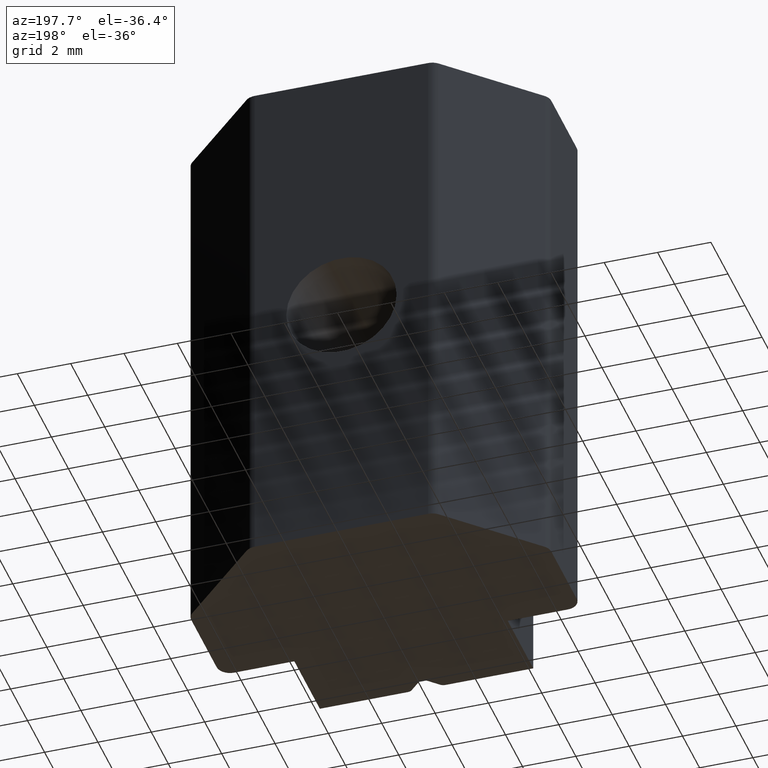
[diagram: clean part render]
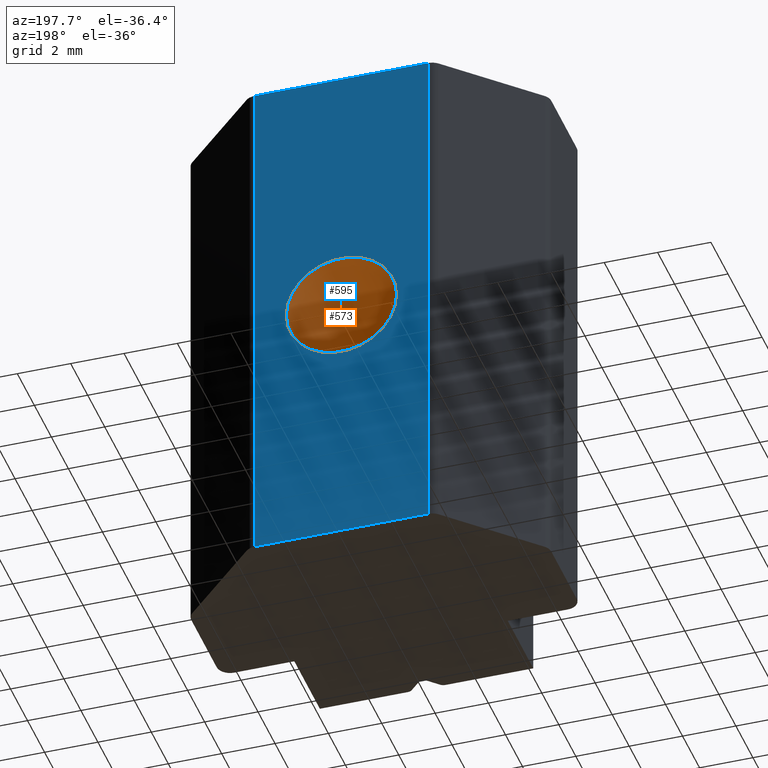
[diagram: same view with the hole feature highlighted: cylindrical wall and planar end face, labeled with their STEP entity ids]
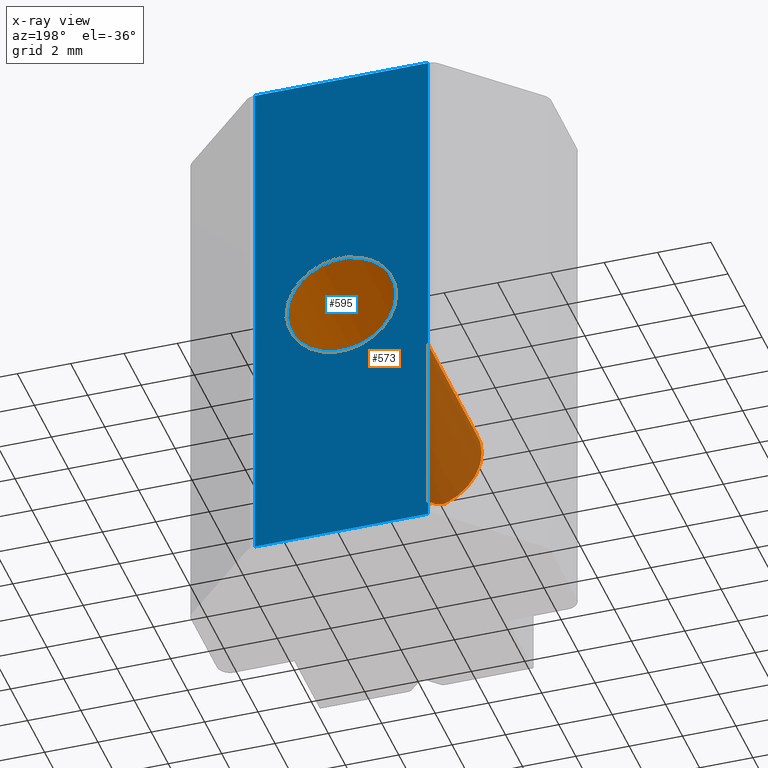
[diagram: x-ray of the same camera — body ghosted, the hole faces saturated]
A machine part, auxiliary view. The highlighted faces form one hole feature of diameter 4.134 mm: the cylindrical wall (entity #573, orange) and its adjacent planar end face (entity #595, blue) — they share a circular edge in the B-rep.
The next image is the same camera in x-ray (body ghosted, the hole faces saturated) — the bore reads through the body.
Wall:
#33=FACE_OUTER_BOUND('',#63,.T.);
#63=EDGE_LOOP('',(#384,#385,#386,#387,#388,#389,#390,#391,#392,#393,#394,
#395,#396,#397,#398,#399,#400));
#94=ELLIPSE('',#627,2.92317943342519,2.067);
#95=ELLIPSE('',#628,2.9231794334252,2.067);
#96=ELLIPSE('',#630,2.9231794334252,2.067);
#97=ELLIPSE('',#631,2.92317943342519,2.067);
#98=B_SPLINE_CURVE_WITH_KNOTS('',3,(#862,#863,#864,#865,#866,#867),
 .UNSPECIFIED.,.F.,.F.,(4,2,4),(0.0189593546450484,0.028750086168631,0.0385408176922137),
 .UNSPECIFIED.);
#99=B_SPLINE_CURVE_WITH_KNOTS('',3,(#871,#872,#873,#874,#875,#876,#877,
#878,#879,#880),.UNSPECIFIED.,.F.,.F.,(4,2,2,2,4),(0.0188542320850235,0.0282812791627061,
0.0377083262403887,0.0471353733180714,0.056562420395754),.UNSPECIFIED.);
#100=B_SPLINE_CURVE_WITH_KNOTS('',3,(#884,#885,#886,#887,#888,#889),
 .UNSPECIFIED.,.F.,.F.,(4,2,4),(0.0393761439582481,0.0492658426014724,0.058958786884301),
 .UNSPECIFIED.);
#101=B_SPLINE_CURVE_WITH_KNOTS('',3,(#893,#894,#895,#896,#897,#898),
 .UNSPECIFIED.,.F.,.F.,(4,2,4),(0.0968750463784597,0.106567990661288,0.116457689304513),
 .UNSPECIFIED.);
#102=B_SPLINE_CURVE_WITH_KNOTS('',3,(#902,#903,#904,#905,#906,#907,#908,
#909,#910,#911),.UNSPECIFIED.,.F.,.F.,(4,2,2,2,4),(0.0942708845658011,0.103697931643484,
0.113124978721166,0.122552025798849,0.131979072876532),.UNSPECIFIED.);
#103=B_SPLINE_CURVE_WITH_KNOTS('',3,(#915,#916,#917,#918,#919,#920),
 .UNSPECIFIED.,.F.,.F.,(4,2,4),(0.11729548706883,0.127086218592413,0.136876950115996),
 .UNSPECIFIED.);
#104=LINE('',#858,#159);
#159=VECTOR('',#688,2.067);
#214=CIRCLE('',#624,2.067);
#215=CIRCLE('',#625,2.067);
#216=CIRCLE('',#626,2.067);
#217=CIRCLE('',#629,2.067);
#218=CIRCLE('',#632,2.067);
#237=VERTEX_POINT('',#853);
#238=VERTEX_POINT('',#854);
#239=VERTEX_POINT('',#857);
#240=VERTEX_POINT('',#859);
#241=VERTEX_POINT('',#861);
#242=VERTEX_POINT('',#868);
#243=VERTEX_POINT('',#870);
#244=VERTEX_POINT('',#881);
#245=VERTEX_POINT('',#883);
#246=VERTEX_POINT('',#890);
#247=VERTEX_POINT('',#892);
#248=VERTEX_POINT('',#899);
#249=VERTEX_POINT('',#901);
#250=VERTEX_POINT('',#912);
#251=VERTEX_POINT('',#914);
#296=EDGE_CURVE('',#237,#238,#214,.T.);
#297=EDGE_CURVE('',#238,#237,#215,.T.);
#298=EDGE_CURVE('',#238,#239,#104,.T.);
#299=EDGE_CURVE('',#240,#239,#216,.T.);
#300=EDGE_CURVE('',#241,#240,#98,.T.);
#301=EDGE_CURVE('',#242,#241,#94,.T.);
#302=EDGE_CURVE('',#243,#242,#99,.T.);
#303=EDGE_CURVE('',#244,#243,#95,.T.);
#304=EDGE_CURVE('',#245,#244,#100,.T.);
#305=EDGE_CURVE('',#246,#245,#217,.T.);
#306=EDGE_CURVE('',#247,#246,#101,.T.);
#307=EDGE_CURVE('',#248,#247,#96,.T.);
#308=EDGE_CURVE('',#249,#248,#102,.T.);
#309=EDGE_CURVE('',#250,#249,#97,.T.);
#310=EDGE_CURVE('',#251,#250,#103,.T.);
#311=EDGE_CURVE('',#239,#251,#218,.T.);
#384=ORIENTED_EDGE('',*,*,#296,.F.);
#385=ORIENTED_EDGE('',*,*,#297,.F.);
#386=ORIENTED_EDGE('',*,*,#298,.T.);
#387=ORIENTED_EDGE('',*,*,#299,.F.);
#388=ORIENTED_EDGE('',*,*,#300,.F.);
#389=ORIENTED_EDGE('',*,*,#301,.F.);
#390=ORIENTED_EDGE('',*,*,#302,.F.);
#391=ORIENTED_EDGE('',*,*,#303,.F.);
#392=ORIENTED_EDGE('',*,*,#304,.F.);
#393=ORIENTED_EDGE('',*,*,#305,.F.);
#394=ORIENTED_EDGE('',*,*,#306,.F.);
#395=ORIENTED_EDGE('',*,*,#307,.F.);
#396=ORIENTED_EDGE('',*,*,#308,.F.);
#397=ORIENTED_EDGE('',*,*,#309,.F.);
#398=ORIENTED_EDGE('',*,*,#310,.F.);
#399=ORIENTED_EDGE('',*,*,#311,.F.);
#400=ORIENTED_EDGE('',*,*,#298,.F.);
#560=CYLINDRICAL_SURFACE('',#623,2.067);
#573=ADVANCED_FACE('',(#33),#560,.F.);
#623=AXIS2_PLACEMENT_3D('',#852,#682,#683);
#624=AXIS2_PLACEMENT_3D('',#855,#684,#685);
#625=AXIS2_PLACEMENT_3D('',#856,#686,#687);
#626=AXIS2_PLACEMENT_3D('',#860,#689,#690);
#627=AXIS2_PLACEMENT_3D('',#869,#691,#692);
#628=AXIS2_PLACEMENT_3D('',#882,#693,#694);
#629=AXIS2_PLACEMENT_3D('',#891,#695,#696);
#630=AXIS2_PLACEMENT_3D('',#900,#697,#698);
#631=AXIS2_PLACEMENT_3D('',#913,#699,#700);
#632=AXIS2_PLACEMENT_3D('',#921,#701,#702);
#682=DIRECTION('center_axis',(0.,1.,0.));
#683=DIRECTION('ref_axis',(1.,0.,0.));
#684=DIRECTION('center_axis',(0.,-1.,0.));
#685=DIRECTION('ref_axis',(1.,0.,0.));
#686=DIRECTION('center_axis',(0.,-1.,0.));
#687=DIRECTION('ref_axis',(1.,0.,0.));
#688=DIRECTION('',(0.,-1.,0.));
#689=DIRECTION('center_axis',(0.,1.,0.));
#690=DIRECTION('ref_axis',(1.,0.,0.));
#691=DIRECTION('center_axis',(-0.707106781186548,0.707106781186547,0.));
#692=DIRECTION('ref_axis',(0.707106781186547,0.707106781186548,0.));
#693=DIRECTION('center_axis',(0.70710678118655,0.707106781186546,0.));
#694=DIRECTION('ref_axis',(0.707106781186546,-0.70710678118655,0.));
#695=DIRECTION('center_axis',(0.,1.,0.));
#696=DIRECTION('ref_axis',(1.,0.,0.));
#697=DIRECTION('center_axis',(0.70710678118655,0.707106781186546,0.));
#698=DIRECTION('ref_axis',(0.707106781186546,-0.70710678118655,0.));
#699=DIRECTION('center_axis',(-0.707106781186548,0.707106781186547,0.));
#700=DIRECTION('ref_axis',(0.707106781186547,0.707106781186548,0.));
#701=DIRECTION('center_axis',(0.,1.,0.));
#702=DIRECTION('ref_axis',(1.,0.,0.));
#852=CARTESIAN_POINT('Origin',(0.,2.,0.));
#853=CARTESIAN_POINT('',(2.067,7.,0.));
#854=CARTESIAN_POINT('',(-2.067,7.,2.53134493383758E-16));
#855=CARTESIAN_POINT('Origin',(0.,7.,0.));
#856=CARTESIAN_POINT('Origin',(0.,7.,0.));
#857=CARTESIAN_POINT('',(-2.067,-3.,2.53134493383758E-16));
#858=CARTESIAN_POINT('',(-2.067,2.,2.53134493383758E-16));
#859=CARTESIAN_POINT('',(-0.707106781186547,-3.,-1.94228962824806));
#860=CARTESIAN_POINT('Origin',(0.,-3.,0.));
#861=CARTESIAN_POINT('',(-0.53033008588991,-2.92677669529664,-1.99780854938605));
#862=CARTESIAN_POINT('Ctrl Pts',(-0.53033008588991,-2.92677669529664,-1.99780854938605));
#863=CARTESIAN_POINT('Ctrl Pts',(-0.553010957873703,-2.94945756728043,-1.99178777788073));
#864=CARTESIAN_POINT('Ctrl Pts',(-0.58155559412577,-2.96874394305654,-1.9837656711944));
#865=CARTESIAN_POINT('Ctrl Pts',(-0.643280412793728,-2.99400452154428,-1.96461789124651));
#866=CARTESIAN_POINT('Ctrl Pts',(-0.676440055995101,-3.,-1.95345410599859));
#867=CARTESIAN_POINT('Ctrl Pts',(-0.707106781186547,-3.,-1.94228962824806));
#868=CARTESIAN_POINT('',(-0.176776695296637,-2.57322330470336,-2.05942686201768));
#869=CARTESIAN_POINT('Origin',(0.,-2.39644660940673,0.));
#870=CARTESIAN_POINT('',(0.176776695296638,-2.57322330470336,-2.05942686201768));
#871=CARTESIAN_POINT('Ctrl Pts',(0.176776695296637,-2.57322330470336,-2.05942686201768));
#872=CARTESIAN_POINT('Ctrl Pts',(0.154597749027066,-2.55104435843379,-2.0613306542324));
#873=CARTESIAN_POINT('Ctrl Pts',(0.126506458288827,-2.53180931212417,-2.06335536388604));
#874=CARTESIAN_POINT('Ctrl Pts',(0.0649206111323508,-2.50628628532827,-2.06621019160437));
#875=CARTESIAN_POINT('Ctrl Pts',(0.0314234902589421,-2.5,-2.067));
#876=CARTESIAN_POINT('Ctrl Pts',(-0.0314234902589421,-2.5,-2.067));
#877=CARTESIAN_POINT('Ctrl Pts',(-0.0649206111323508,-2.50628628532827,
-2.06621019160437));
#878=CARTESIAN_POINT('Ctrl Pts',(-0.126506458288827,-2.53180931212417,-2.06335536388604));
#879=CARTESIAN_POINT('Ctrl Pts',(-0.154597749027066,-2.55104435843379,-2.0613306542324));
#880=CARTESIAN_POINT('Ctrl Pts',(-0.176776695296637,-2.57322330470336,-2.05942686201768));
#881=CARTESIAN_POINT('',(0.530330085889911,-2.92677669529664,-1.99780854938605));
#882=CARTESIAN_POINT('Origin',(0.,-2.39644660940672,0.));
#883=CARTESIAN_POINT('',(0.707106781186547,-3.,-1.94228962824806));
#884=CARTESIAN_POINT('Ctrl Pts',(0.707106781186547,-3.,-1.94228962824806));
#885=CARTESIAN_POINT('Ctrl Pts',(0.67613006920262,-3.,-1.9535669592826));
#886=CARTESIAN_POINT('Ctrl Pts',(0.642650412125106,-2.99388303099094,-1.9648282898104));
#887=CARTESIAN_POINT('Ctrl Pts',(0.581046875909706,-2.96839826632974,-1.98390839008218));
#888=CARTESIAN_POINT('Ctrl Pts',(0.552840254648263,-2.94928686405499,-1.99183309206073));
#889=CARTESIAN_POINT('Ctrl Pts',(0.53033008588991,-2.92677669529664,-1.99780854938605));
#890=CARTESIAN_POINT('',(0.707106781186547,-3.,1.94228962824806));
#891=CARTESIAN_POINT('Origin',(0.,-3.,0.));
#892=CARTESIAN_POINT('',(0.530330085889911,-2.92677669529664,1.99780854938605));
#893=CARTESIAN_POINT('Ctrl Pts',(0.53033008588991,-2.92677669529664,1.99780854938605));
#894=CARTESIAN_POINT('Ctrl Pts',(0.552840254648263,-2.94928686405499,1.99183309206073));
#895=CARTESIAN_POINT('Ctrl Pts',(0.581046875909706,-2.96839826632974,1.98390839008218));
#896=CARTESIAN_POINT('Ctrl Pts',(0.642650412125106,-2.99388303099094,1.9648282898104));
#897=CARTESIAN_POINT('Ctrl Pts',(0.67613006920262,-3.,1.9535669592826));
#898=CARTESIAN_POINT('Ctrl Pts',(0.707106781186547,-3.,1.94228962824806));
#899=CARTESIAN_POINT('',(0.176776695296638,-2.57322330470336,2.05942686201768));
#900=CARTESIAN_POINT('Origin',(0.,-2.39644660940672,0.));
#901=CARTESIAN_POINT('',(-0.176776695296637,-2.57322330470336,2.05942686201768));
#902=CARTESIAN_POINT('Ctrl Pts',(-0.176776695296637,-2.57322330470336,2.05942686201768));
#903=CARTESIAN_POINT('Ctrl Pts',(-0.154597749027066,-2.55104435843379,2.0613306542324));
#904=CARTESIAN_POINT('Ctrl Pts',(-0.126506458288827,-2.53180931212417,2.06335536388604));
#905=CARTESIAN_POINT('Ctrl Pts',(-0.0649206111323508,-2.50628628532827,
2.06621019160437));
#906=CARTESIAN_POINT('Ctrl Pts',(-0.0314234902589421,-2.5,2.067));
#907=CARTESIAN_POINT('Ctrl Pts',(0.0314234902589421,-2.5,2.067));
#908=CARTESIAN_POINT('Ctrl Pts',(0.0649206111323507,-2.50628628532827,2.06621019160437));
#909=CARTESIAN_POINT('Ctrl Pts',(0.126506458288827,-2.53180931212417,2.06335536388604));
#910=CARTESIAN_POINT('Ctrl Pts',(0.154597749027066,-2.55104435843379,2.0613306542324));
#911=CARTESIAN_POINT('Ctrl Pts',(0.176776695296637,-2.57322330470336,2.05942686201768));
#912=CARTESIAN_POINT('',(-0.53033008588991,-2.92677669529664,1.99780854938605));
#913=CARTESIAN_POINT('Origin',(0.,-2.39644660940673,0.));
#914=CARTESIAN_POINT('',(-0.707106781186547,-3.,1.94228962824806));
#915=CARTESIAN_POINT('Ctrl Pts',(-0.707106781186547,-3.,1.94228962824806));
#916=CARTESIAN_POINT('Ctrl Pts',(-0.676440055995101,-3.,1.95345410599859));
#917=CARTESIAN_POINT('Ctrl Pts',(-0.643280412793728,-2.99400452154428,1.96461789124651));
#918=CARTESIAN_POINT('Ctrl Pts',(-0.58155559412577,-2.96874394305654,1.9837656711944));
#919=CARTESIAN_POINT('Ctrl Pts',(-0.553010957873703,-2.94945756728043,1.99178777788073));
#920=CARTESIAN_POINT('Ctrl Pts',(-0.53033008588991,-2.92677669529664,1.99780854938605));
#921=CARTESIAN_POINT('Origin',(0.,-3.,0.));
End face:
#15=FACE_BOUND('',#86,.T.);
#28=PLANE('',#669);
#55=FACE_OUTER_BOUND('',#85,.T.);
#85=EDGE_LOOP('',(#508,#509,#510,#511));
#86=EDGE_LOOP('',(#512,#513));
#131=LINE('',#994,#186);
#148=LINE('',#1039,#203);
#149=LINE('',#1042,#204);
#150=LINE('',#1043,#205);
#186=VECTOR('',#773,10.);
#203=VECTOR('',#818,10.);
#204=VECTOR('',#821,10.);
#205=VECTOR('',#822,10.);
#214=CIRCLE('',#624,2.067);
#215=CIRCLE('',#625,2.067);
#237=VERTEX_POINT('',#853);
#238=VERTEX_POINT('',#854);
#274=VERTEX_POINT('',#991);
#275=VERTEX_POINT('',#993);
#289=VERTEX_POINT('',#1037);
#290=VERTEX_POINT('',#1041);
#296=EDGE_CURVE('',#237,#238,#214,.T.);
#297=EDGE_CURVE('',#238,#237,#215,.T.);
#347=EDGE_CURVE('',#274,#275,#131,.T.);
#370=EDGE_CURVE('',#274,#289,#148,.T.);
#371=EDGE_CURVE('',#290,#289,#149,.T.);
#372=EDGE_CURVE('',#275,#290,#150,.T.);
#508=ORIENTED_EDGE('',*,*,#370,.T.);
#509=ORIENTED_EDGE('',*,*,#371,.F.);
#510=ORIENTED_EDGE('',*,*,#372,.F.);
#511=ORIENTED_EDGE('',*,*,#347,.F.);
#512=ORIENTED_EDGE('',*,*,#296,.T.);
#513=ORIENTED_EDGE('',*,*,#297,.T.);
#595=ADVANCED_FACE('',(#55,#15),#28,.T.);
#624=AXIS2_PLACEMENT_3D('',#855,#684,#685);
#625=AXIS2_PLACEMENT_3D('',#856,#686,#687);
#669=AXIS2_PLACEMENT_3D('',#1040,#819,#820);
#684=DIRECTION('center_axis',(0.,-1.,0.));
#685=DIRECTION('ref_axis',(1.,0.,0.));
#686=DIRECTION('center_axis',(0.,-1.,0.));
#687=DIRECTION('ref_axis',(1.,0.,0.));
#773=DIRECTION('',(1.,0.,0.));
#818=DIRECTION('',(0.,0.,1.));
#819=DIRECTION('center_axis',(0.,1.,0.));
#820=DIRECTION('ref_axis',(-1.,0.,0.));
#821=DIRECTION('',(-1.,0.,0.));
#822=DIRECTION('',(0.,0.,1.));
#853=CARTESIAN_POINT('',(2.067,7.,0.));
#854=CARTESIAN_POINT('',(-2.067,7.,2.53134493383758E-16));
#855=CARTESIAN_POINT('Origin',(0.,7.,0.));
#856=CARTESIAN_POINT('Origin',(0.,7.,0.));
#991=CARTESIAN_POINT('',(-3.25,7.,-10.));
#993=CARTESIAN_POINT('',(3.25,7.,-10.));
#994=CARTESIAN_POINT('',(3.25,7.,-10.));
#1037=CARTESIAN_POINT('',(-3.25,7.,10.));
#1039=CARTESIAN_POINT('',(-3.25,7.,0.));
#1040=CARTESIAN_POINT('Origin',(3.25,7.,0.));
#1041=CARTESIAN_POINT('',(3.25,7.,10.));
#1042=CARTESIAN_POINT('',(3.25,7.,10.));
#1043=CARTESIAN_POINT('',(3.25,7.,0.));